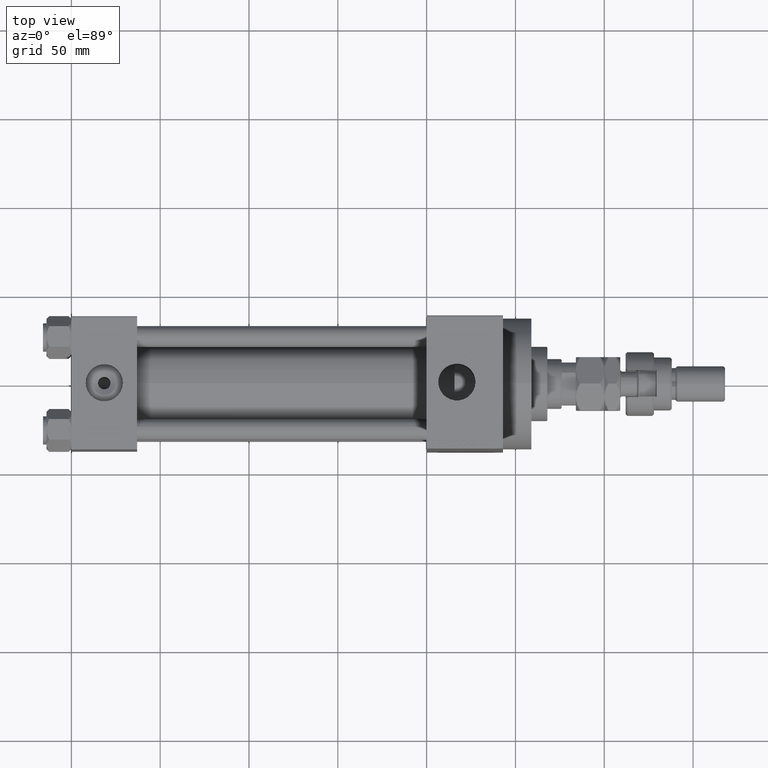
[diagram: clean part render]
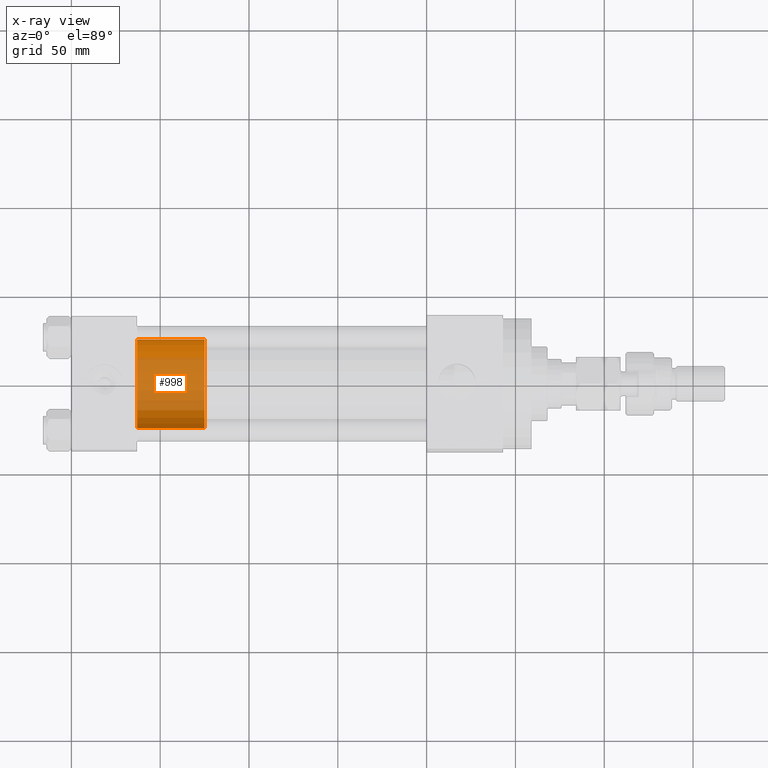
[diagram: x-ray — body ghosted, one internal face saturated and labeled with its STEP entity id]
A machine part, top view, then the same camera in x-ray: the body is ghosted and one INTERNAL B-rep face — a face not visible from any outside direction — is saturated and labeled: STEP entity #998.
In plain terms, the highlighted cylindrical surface (partial cylindrical patch) has radius 25 mm, axis along (-1, 0, 0).
Its self-contained STEP definition (entity closure, byte-faithful):
#975 = VERTEX_POINT ( 'NONE', #5276 ) ;
#998 = ADVANCED_FACE ( 'NONE', ( #26307 ), #10072, .T. ) ;
#1023 = CIRCLE ( 'NONE', #37503, 25.00000000000000000 ) ;
#3769 = DIRECTION ( 'NONE',  ( -0.000000000000000000, -0.000000000000000000, -1.000000000000000000 ) ) ;
#4174 = CIRCLE ( 'NONE', #20332, 25.00000000000000000 ) ;
#5276 = CARTESIAN_POINT ( 'NONE',  ( 25.00000000000000000, 3.061616997868383043E-15, 0.000000000000000000 ) ) ;
#7172 = DIRECTION ( 'NONE',  ( -0.000000000000000000, -0.000000000000000000, -1.000000000000000000 ) ) ;
#8250 = ORIENTED_EDGE ( 'NONE', *, *, #30458, .F. ) ;
#9694 = ORIENTED_EDGE ( 'NONE', *, *, #49760, .T. ) ;
#10053 = EDGE_CURVE ( 'NONE', #18748, #975, #26956, .T. ) ;
#10072 = CYLINDRICAL_SURFACE ( 'NONE', #19875, 25.00000000000000000 ) ;
#10190 = DIRECTION ( 'NONE',  ( 0.000000000000000000, 0.000000000000000000, 1.000000000000000000 ) ) ;
#12790 = CARTESIAN_POINT ( 'NONE',  ( -25.00000000000000000, 0.000000000000000000, 38.00000000000000000 ) ) ;
#13274 = EDGE_LOOP ( 'NONE', ( #34387, #47476, #9694, #8250 ) ) ;
#14023 = CARTESIAN_POINT ( 'NONE',  ( 0.000000000000000000, 0.000000000000000000, 38.00000000000000000 ) ) ;
#18315 = DIRECTION ( 'NONE',  ( 0.000000000000000000, 0.000000000000000000, 1.000000000000000000 ) ) ;
#18748 = VERTEX_POINT ( 'NONE', #33460 ) ;
#19875 = AXIS2_PLACEMENT_3D ( 'NONE', #45159, #30626, #22489 ) ;
#20332 = AXIS2_PLACEMENT_3D ( 'NONE', #25169, #10190, #48822 ) ;
#22346 = EDGE_CURVE ( 'NONE', #18748, #33700, #1023, .T. ) ;
#22489 = DIRECTION ( 'NONE',  ( -1.000000000000000000, 0.000000000000000000, 0.000000000000000000 ) ) ;
#23141 = CARTESIAN_POINT ( 'NONE',  ( 25.00000000000000000, 3.061616997868383043E-15, 38.00000000000000000 ) ) ;
#25169 = CARTESIAN_POINT ( 'NONE',  ( 0.000000000000000000, 0.000000000000000000, 0.000000000000000000 ) ) ;
#26307 = FACE_OUTER_BOUND ( 'NONE', #13274, .T. ) ;
#26956 = LINE ( 'NONE', #23141, #31423 ) ;
#27108 = LINE ( 'NONE', #42391, #44195 ) ;
#30458 = EDGE_CURVE ( 'NONE', #33700, #31035, #27108, .T. ) ;
#30626 = DIRECTION ( 'NONE',  ( -0.000000000000000000, -0.000000000000000000, -1.000000000000000000 ) ) ;
#31035 = VERTEX_POINT ( 'NONE', #48334 ) ;
#31423 = VECTOR ( 'NONE', #7172, 1000.000000000000000 ) ;
#33460 = CARTESIAN_POINT ( 'NONE',  ( 25.00000000000000000, 3.061616997868383043E-15, 38.00000000000000000 ) ) ;
#33700 = VERTEX_POINT ( 'NONE', #12790 ) ;
#34387 = ORIENTED_EDGE ( 'NONE', *, *, #22346, .F. ) ;
#37503 = AXIS2_PLACEMENT_3D ( 'NONE', #14023, #18315, #49366 ) ;
#42391 = CARTESIAN_POINT ( 'NONE',  ( -25.00000000000000000, 0.000000000000000000, 38.00000000000000000 ) ) ;
#44195 = VECTOR ( 'NONE', #3769, 1000.000000000000000 ) ;
#45159 = CARTESIAN_POINT ( 'NONE',  ( 0.000000000000000000, 0.000000000000000000, 38.00000000000000000 ) ) ;
#47476 = ORIENTED_EDGE ( 'NONE', *, *, #10053, .T. ) ;
#48334 = CARTESIAN_POINT ( 'NONE',  ( -25.00000000000000000, 0.000000000000000000, 0.000000000000000000 ) ) ;
#48822 = DIRECTION ( 'NONE',  ( 1.000000000000000000, 0.000000000000000000, 0.000000000000000000 ) ) ;
#49366 = DIRECTION ( 'NONE',  ( 1.000000000000000000, 0.000000000000000000, 0.000000000000000000 ) ) ;
#49760 = EDGE_CURVE ( 'NONE', #975, #31035, #4174, .T. ) ;